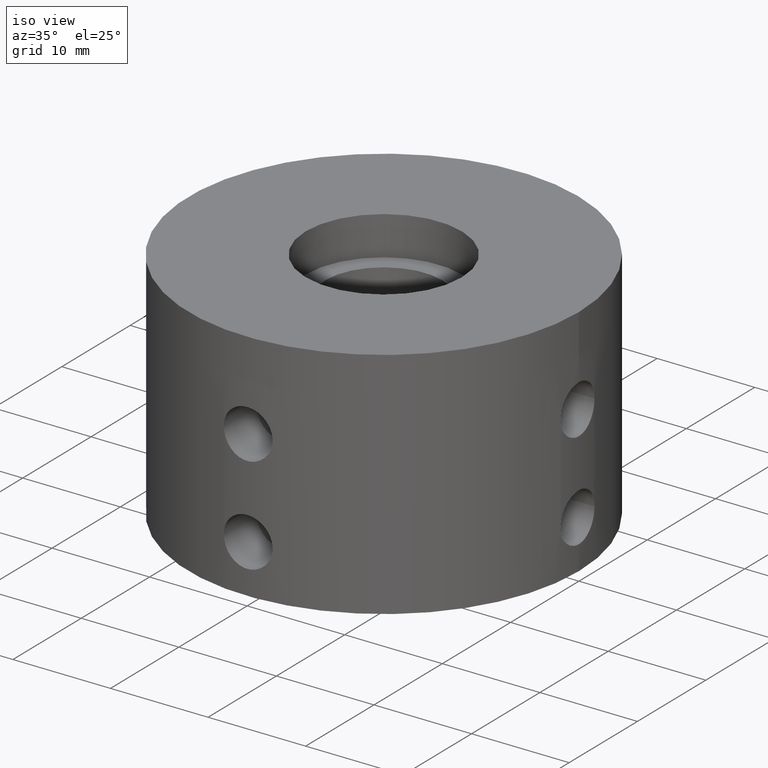
[diagram: clean part render]
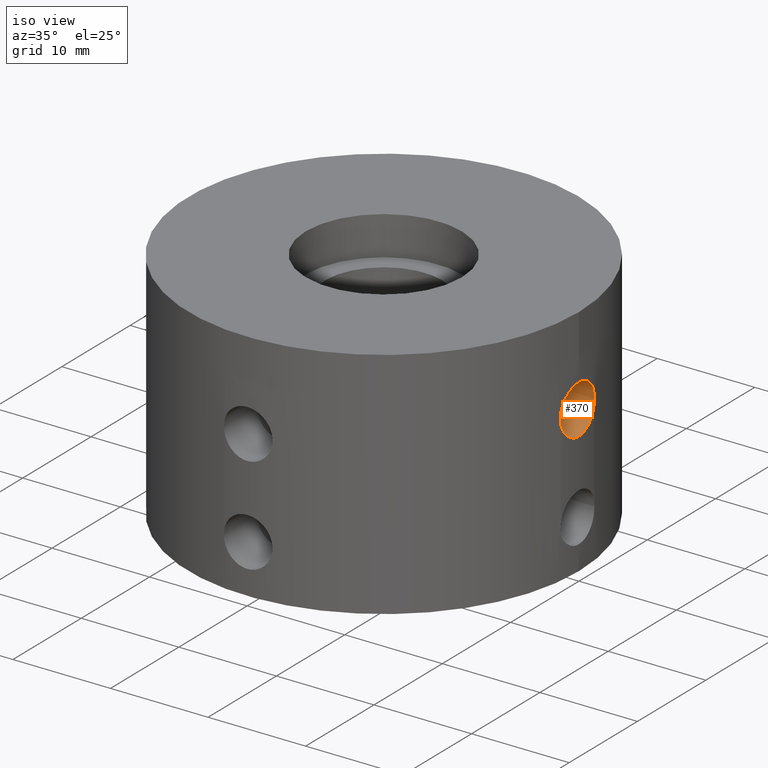
[diagram: same view with one face highlighted and labeled with its STEP entity id]
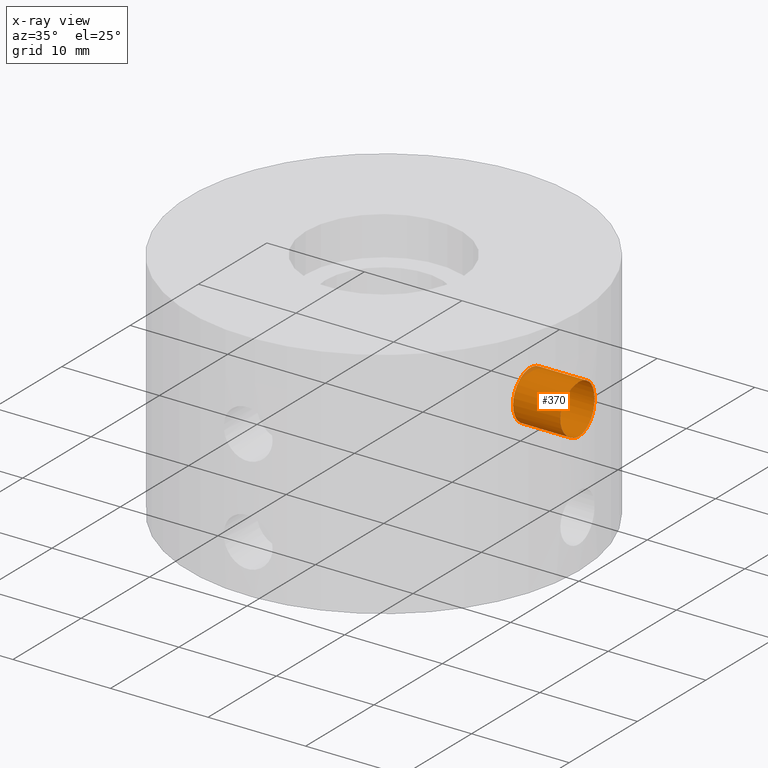
[diagram: x-ray of the same camera — body ghosted, the highlighted face saturated]
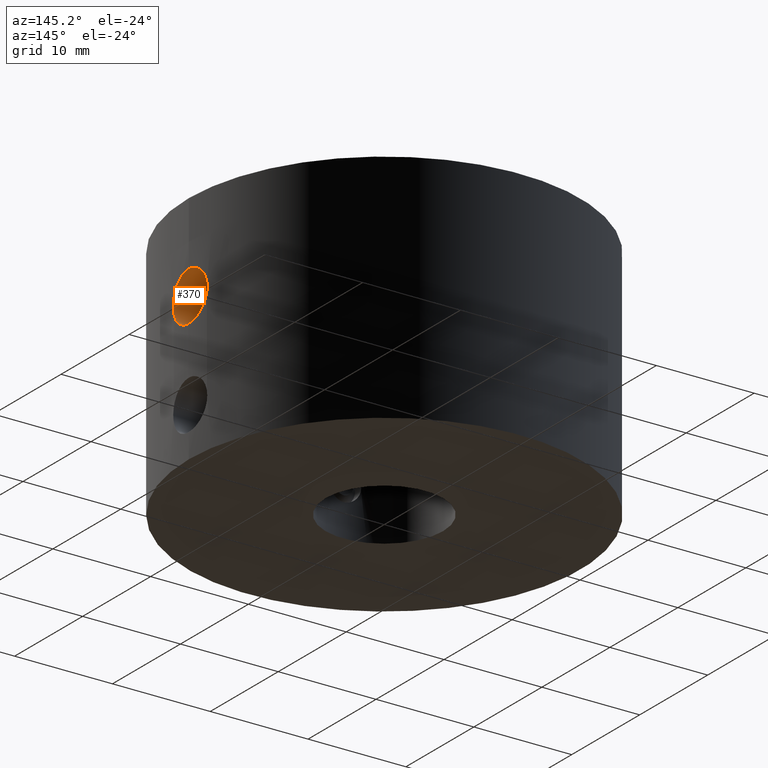
[diagram: same view with one face highlighted and labeled with its STEP entity id]
A machine part, iso view. The second image highlights one B-rep face of the part: STEP entity #370.
The next image is the same camera in x-ray: the body ghosted, the highlighted face saturated — about 2% of this face is hidden behind the body in this view.
A second angle (auxiliary view) of the same face is appended — the face is thin or edge-on in the first view.
In plain terms, the highlighted cylindrical surface (bore or boss wall) has radius 2.5 mm, axis along (-1, 0, -0).
Its self-contained STEP definition (entity closure, byte-faithful):
#370 = ADVANCED_FACE( '', ( #471, #472 ), #473, .F. );
#471 = FACE_OUTER_BOUND( '', #643, .T. );
#472 = FACE_OUTER_BOUND( '', #644, .T. );
#473 = CYLINDRICAL_SURFACE( '', #645, 2.50000000000000 );
#643 = EDGE_LOOP( '', ( #837 ) );
#644 = EDGE_LOOP( '', ( #838 ) );
#645 = AXIS2_PLACEMENT_3D( '', #839, #840, #841 );
#837 = ORIENTED_EDGE( '', *, *, #1203, .T. );
#838 = ORIENTED_EDGE( '', *, *, #1186, .T. );
#839 = CARTESIAN_POINT( '', ( 20.0000000000000, -1.22460635382238E-015, -19.0000000000000 ) );
#840 = DIRECTION( '', ( -1.00000000000000, 6.12303176911189E-017, -0.000000000000000 ) );
#841 = DIRECTION( '', ( 6.12303176911189E-017, 1.00000000000000, 0.000000000000000 ) );
#1186 = EDGE_CURVE( '', #1298, #1298, #1299, .T. );
#1203 = EDGE_CURVE( '', #1332, #1332, #1333, .T. );
#1298 = VERTEX_POINT( '', #1490 );
#1299 = B_SPLINE_CURVE_WITH_KNOTS( '', 3, ( #1491, #1492, #1493, #1494, #1495, #1496, #1497, #1498, #1499, #1500, #1501, #1502, #1503, #1504, #1505, #1506, #1507, #1508, #1509, #1510, #1511, #1512, #1513, #1514, #1515, #1516, #1517, #1518, #1519, #1520, #1521, #1522, #1523, #1524, #1525, #1526, #1527, #1528, #1529, #1530, #1531, #1532, #1533, #1534, #1535, #1536, #1537, #1538, #1539, #1540, #1541, #1542, #1543, #1544, #1545, #1546, #1547, #1548, #1549, #1550, #1551, #1552, #1553, #1554 ), .UNSPECIFIED., .T., .F., ( 2, 2, 2, 2, 2, 2, 2, 2, 2, 2, 2, 2, 2, 2, 2, 2, 2, 2, 2, 2, 2, 2, 2, 2, 2, 2, 2, 2, 2, 2, 2, 2, 2, 2 ), ( -0.000977855993839807, 0.000000000000000, 0.000488927996919902, 0.000977855993839803, 0.00146678399075970, 0.00195571198767961, 0.00244463998459951, 0.00293356798151941, 0.00342249597843931, 0.00391142397535921, 0.00440035197227912, 0.00488927996919902, 0.00537820796611892, 0.00586713596303882, 0.00635606395995872, 0.00684499195687862, 0.00733391995379852, 0.00782284795071843, 0.00831177594763833, 0.00880070394455823, 0.00928963194147813, 0.00977855993839803, 0.0102674879353179, 0.0107564159322378, 0.0112453439291577, 0.0117342719260776, 0.0122231999229975, 0.0127121279199174, 0.0132010559168373, 0.0136899839137572, 0.0141789119106771, 0.0146678399075971, 0.0156456959014369, 0.0161346238983568 ), .UNSPECIFIED. );
#1332 = VERTEX_POINT( '', #1988 );
#1333 = CIRCLE( '', #1989, 2.50000000000000 );
#1490 = CARTESIAN_POINT( '', ( 19.8431348329844, 2.50000000000000, -19.0000000000000 ) );
#1491 = CARTESIAN_POINT( '', ( 19.8431348329845, 2.50000000000000, -19.3306705126766 ) );
#1492 = CARTESIAN_POINT( '', ( 19.8431348329844, 2.50000000000000, -18.8346647436617 ) );
#1493 = CARTESIAN_POINT( '', ( 19.8451999504549, 2.48376037073877, -18.6721250012391 ) );
#1494 = CARTESIAN_POINT( '', ( 19.8530563813011, 2.42016093962049, -18.3523977915416 ) );
#1495 = CARTESIAN_POINT( '', ( 19.8589407179123, 2.37201743676022, -18.1935412149563 ) );
#1496 = CARTESIAN_POINT( '', ( 19.8735331921165, 2.24647982846315, -17.8908693167274 ) );
#1497 = CARTESIAN_POINT( '', ( 19.8821728498970, 2.16968208183429, -17.7473415011313 ) );
#1498 = CARTESIAN_POINT( '', ( 19.9011332533963, 1.98826879469967, -17.4757097221840 ) );
#1499 = CARTESIAN_POINT( '', ( 19.9115168514063, 1.88278326122355, -17.3472250898610 ) );
#1500 = CARTESIAN_POINT( '', ( 19.9319598457381, 1.65237793511715, -17.1168683339005 ) );
#1501 = CARTESIAN_POINT( '', ( 19.9421201764693, 1.52662867647319, -17.0134408339376 ) );
#1502 = CARTESIAN_POINT( '', ( 19.9611549636309, 1.25341324649460, -16.8306757573824 ) );
#1503 = CARTESIAN_POINT( '', ( 19.9698442585154, 1.10814451730824, -16.7531093816609 ) );
#1504 = CARTESIAN_POINT( '', ( 19.9842630899309, 0.807398744752935, -16.6283741886647 ) );
#1505 = CARTESIAN_POINT( '', ( 19.9900965559976, 0.649693297575543, -16.5802938453219 ) );
#1506 = CARTESIAN_POINT( '', ( 19.9979795752332, 0.326916820581655, -16.5160103365106 ) );
#1507 = CARTESIAN_POINT( '', ( 19.9999886238825, 0.164603943620750, -16.5000910089542 ) );
#1508 = CARTESIAN_POINT( '', ( 20.0000112797773, -0.161827755542730, -16.4999097617679 ) );
#1509 = CARTESIAN_POINT( '', ( 19.9979596225618, -0.327637660979743, -16.5161737910485 ) );
#1510 = CARTESIAN_POINT( '', ( 19.9901307806305, -0.648387905341472, -16.5800140088476 ) );
#1511 = CARTESIAN_POINT( '', ( 19.9843959457373, -0.804303507921184, -16.6272475534347 ) );
#1512 = CARTESIAN_POINT( '', ( 19.9699060193386, -1.10717615023170, -16.7525527196630 ) );
#1513 = CARTESIAN_POINT( '', ( 19.9611500654949, -1.25335531491191, -16.8307604972882 ) );
#1514 = CARTESIAN_POINT( '', ( 19.9423067182636, -1.52407815984763, -17.0116123797864 ) );
#1515 = CARTESIAN_POINT( '', ( 19.9321298958606, -1.65042842490572, -17.1149845434462 ) );
#1516 = CARTESIAN_POINT( '', ( 19.9114344757626, -1.88374448601919, -17.3481210793233 ) );
#1517 = CARTESIAN_POINT( '', ( 19.9012517915749, -1.98707402278861, -17.4742111163077 ) );
#1518 = CARTESIAN_POINT( '', ( 19.8823397906495, -2.16814448154623, -17.7447532526308 ) );
#1519 = CARTESIAN_POINT( '', ( 19.8735289657585, -2.24651682267176, -17.8909482132179 ) );
#1520 = CARTESIAN_POINT( '', ( 19.8589395811235, -2.37202658093808, -18.1935735621677 ) );
#1521 = CARTESIAN_POINT( '', ( 19.8531508773540, -2.41938917193464, -18.3493960607167 ) );
#1522 = CARTESIAN_POINT( '', ( 19.8452310387218, -2.48351540039675, -18.6700292329952 ) );
#1523 = CARTESIAN_POINT( '', ( 19.8431425766259, -2.49993853674691, -18.8358344136032 ) );
#1524 = CARTESIAN_POINT( '', ( 19.8431271337471, -2.50006111080627, -19.1622882297131 ) );
#1525 = CARTESIAN_POINT( '', ( 19.8451338844150, -2.48429074703692, -19.3246278320017 ) );
#1526 = CARTESIAN_POINT( '', ( 19.8530400374251, -2.42029764255657, -19.6474898196562 ) );
#1527 = CARTESIAN_POINT( '', ( 19.8588973896626, -2.37236638894921, -19.8052305300815 ) );
#1528 = CARTESIAN_POINT( '', ( 19.8733754015875, -2.24786075283608, -20.1061828627539 ) );
#1529 = CARTESIAN_POINT( '', ( 19.8821072736234, -2.17030446512811, -20.2517023406937 ) );
#1530 = CARTESIAN_POINT( '', ( 19.9011750398982, -1.98787402582729, -20.5249055965844 ) );
#1531 = CARTESIAN_POINT( '', ( 19.9113468003888, -1.88457572592326, -20.6507362445156 ) );
#1532 = CARTESIAN_POINT( '', ( 19.9317969003718, -1.65433654206872, -20.8814160680915 ) );
#1533 = CARTESIAN_POINT( '', ( 19.9421701949708, -1.52589079017970, -20.9870335460305 ) );
#1534 = CARTESIAN_POINT( '', ( 19.9610766249009, -1.25455759675432, -21.1685779333544 ) );
#1535 = CARTESIAN_POINT( '', ( 19.9696857444592, -1.11112527388525, -21.2454963903480 ) );
#1536 = CARTESIAN_POINT( '', ( 19.9842256063626, -0.808501713495634, -21.3713241854725 ) );
#1537 = CARTESIAN_POINT( '', ( 19.9900821476984, -0.649745315512696, -21.4195844547583 ) );
#1538 = CARTESIAN_POINT( '', ( 19.9979140175442, -0.330133599730241, -21.4834592235565 ) );
#1539 = CARTESIAN_POINT( '', ( 19.9999811730103, -0.167580600947785, -21.4998493840222 ) );
#1540 = CARTESIAN_POINT( '', ( 20.0000185711153, 0.163056228412592, -21.5001485689827 ) );
#1541 = CARTESIAN_POINT( '', ( 19.9979889733206, 0.325610539741725, -21.4840592000678 ) );
#1542 = CARTESIAN_POINT( '', ( 19.9902229447223, 0.645423753004395, -21.4207437931533 ) );
#1543 = CARTESIAN_POINT( '', ( 19.9843933723230, 0.804356341668876, -21.3727301256626 ) );
#1544 = CARTESIAN_POINT( '', ( 19.9699091692519, 1.10711126629625, -21.2474745866527 ) );
#1545 = CARTESIAN_POINT( '', ( 19.9613193602182, 1.25071726811698, -21.1708041390043 ) );
#1546 = CARTESIAN_POINT( '', ( 19.9424262738342, 1.52256316718686, -20.9895943547894 ) );
#1547 = CARTESIAN_POINT( '', ( 19.9320642731651, 1.65112247035723, -20.8842313087022 ) );
#1548 = CARTESIAN_POINT( '', ( 19.9116232121634, 1.88166220627925, -20.6540496903880 ) );
#1549 = CARTESIAN_POINT( '', ( 19.9014421655392, 1.98521228174483, -20.5283843505121 ) );
#1550 = CARTESIAN_POINT( '', ( 19.8823315901916, 2.16826165615632, -20.2552561160668 ) );
#1551 = CARTESIAN_POINT( '', ( 19.8735970675182, 2.24590709303218, -20.1101363813470 ) );
#1552 = CARTESIAN_POINT( '', ( 19.8518099130265, 2.43340902181754, -19.6591861310939 ) );
#1553 = CARTESIAN_POINT( '', ( 19.8431348329845, 2.50000000000000, -19.3306705126766 ) );
#1554 = CARTESIAN_POINT( '', ( 19.8431348329844, 2.50000000000000, -18.8346647436617 ) );
#1988 = CARTESIAN_POINT( '', ( 15.0000000000000, 2.50000000000000, -19.0000000000000 ) );
#1989 = AXIS2_PLACEMENT_3D( '', #2341, #2342, #2343 );
#2341 = CARTESIAN_POINT( '', ( 15.0000000000000, -9.18454765366783E-016, -19.0000000000000 ) );
#2342 = DIRECTION( '', ( -1.00000000000000, 6.12303176911189E-017, 0.000000000000000 ) );
#2343 = DIRECTION( '', ( 6.12303176911189E-017, 1.00000000000000, 0.000000000000000 ) );